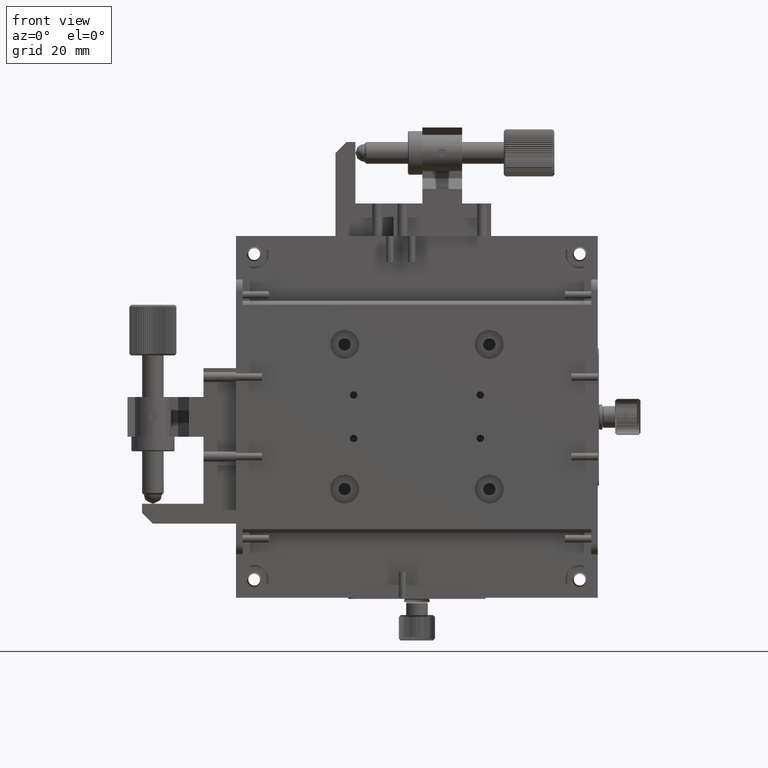
[diagram: clean part render]
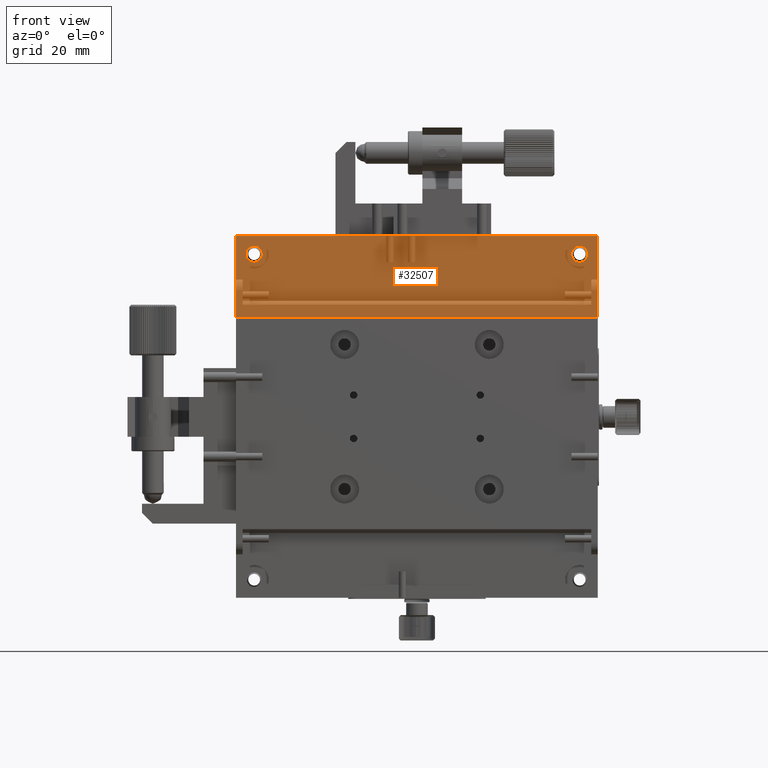
[diagram: same view with one face highlighted and labeled with its STEP entity id]
A machine part, front view. The second image highlights one B-rep face of the part: STEP entity #32507.
In plain terms, the highlighted planar face has unit normal (0, 1, 0).
Its self-contained STEP definition (entity closure, byte-faithful):
#390 = FACE_OUTER_BOUND ( 'NONE', #20846, .T. ) ;
#1474 = VECTOR ( 'NONE', #37595, 1000.000000000000000 ) ;
#2910 = LINE ( 'NONE', #36315, #6739 ) ;
#3729 = VERTEX_POINT ( 'NONE', #3929 ) ;
#3929 = CARTESIAN_POINT ( 'NONE',  ( 45.61567507671323085, -7.538186157517900554, 50.00000000000000711 ) ) ;
#4338 = DIRECTION ( 'NONE',  ( 0.000000000000000000, -0.000000000000000000, 1.000000000000000000 ) ) ;
#6159 = EDGE_CURVE ( 'NONE', #15373, #42281, #36886, .T. ) ;
#6739 = VECTOR ( 'NONE', #28218, 1000.000000000000000 ) ;
#7668 = DIRECTION ( 'NONE',  ( 0.000000000000000000, 0.000000000000000000, -1.000000000000000000 ) ) ;
#8024 = FACE_BOUND ( 'NONE', #29202, .T. ) ;
#9445 = ORIENTED_EDGE ( 'NONE', *, *, #40826, .F. ) ;
#9775 = EDGE_CURVE ( 'NONE', #15373, #3729, #41051, .T. ) ;
#12001 = VERTEX_POINT ( 'NONE', #23041 ) ;
#12205 = CARTESIAN_POINT ( 'NONE',  ( -54.38432492328677625, -7.538186157517900554, 50.00000000000000000 ) ) ;
#14336 = CARTESIAN_POINT ( 'NONE',  ( -54.38432492328678336, -7.538186157517901442, 27.40000000000000924 ) ) ;
#14999 = CARTESIAN_POINT ( 'NONE',  ( 45.61567507671323085, -7.538186157517900554, 50.00000000000000000 ) ) ;
#15373 = VERTEX_POINT ( 'NONE', #21333 ) ;
#15952 = CIRCLE ( 'NONE', #36335, 2.250000000000001776 ) ;
#19073 = VERTEX_POINT ( 'NONE', #21285 ) ;
#19586 = CARTESIAN_POINT ( 'NONE',  ( -49.38432492328678336, -7.538186157517900554, 45.00000000000000000 ) ) ;
#20846 = EDGE_LOOP ( 'NONE', ( #21800, #31520, #33452, #9445 ) ) ;
#21285 = CARTESIAN_POINT ( 'NONE',  ( -54.38432492328677625, -7.538186157517900554, 50.00000000000000000 ) ) ;
#21333 = CARTESIAN_POINT ( 'NONE',  ( 45.61567507671323085, -7.538186157517900554, 27.40000000000000924 ) ) ;
#21800 = ORIENTED_EDGE ( 'NONE', *, *, #46167, .T. ) ;
#22951 = VECTOR ( 'NONE', #7668, 1000.000000000000000 ) ;
#22999 = PLANE ( 'NONE',  #43931 ) ;
#23041 = CARTESIAN_POINT ( 'NONE',  ( -49.38432492328678336, -7.538186157517900554, 42.74999999999999289 ) ) ;
#26063 = ORIENTED_EDGE ( 'NONE', *, *, #39131, .T. ) ;
#26922 = FACE_BOUND ( 'NONE', #28720, .T. ) ;
#27540 = DIRECTION ( 'NONE',  ( 0.000000000000000000, -1.000000000000000000, 0.000000000000000000 ) ) ;
#28200 = AXIS2_PLACEMENT_3D ( 'NONE', #42789, #27540, #38341 ) ;
#28218 = DIRECTION ( 'NONE',  ( 1.000000000000000000, 0.000000000000000000, -0.000000000000000000 ) ) ;
#28720 = EDGE_LOOP ( 'NONE', ( #29189 ) ) ;
#28734 = VECTOR ( 'NONE', #34330, 1000.000000000000000 ) ;
#29189 = ORIENTED_EDGE ( 'NONE', *, *, #42769, .T. ) ;
#29202 = EDGE_LOOP ( 'NONE', ( #26063 ) ) ;
#31520 = ORIENTED_EDGE ( 'NONE', *, *, #9775, .F. ) ;
#32507 = ADVANCED_FACE ( 'NONE', ( #390, #26922, #8024 ), #22999, .T. ) ;
#33452 = ORIENTED_EDGE ( 'NONE', *, *, #6159, .T. ) ;
#33684 = CIRCLE ( 'NONE', #28200, 2.250000000000001776 ) ;
#34330 = DIRECTION ( 'NONE',  ( -1.000000000000000000, -0.000000000000000000, 0.000000000000000000 ) ) ;
#34539 = DIRECTION ( 'NONE',  ( 0.000000000000000000, 1.000000000000000000, 0.000000000000000000 ) ) ;
#36315 = CARTESIAN_POINT ( 'NONE',  ( -4.384324923286775366, -7.538186157517900554, 50.00000000000000000 ) ) ;
#36335 = AXIS2_PLACEMENT_3D ( 'NONE', #19586, #38736, #41935 ) ;
#36886 = LINE ( 'NONE', #41704, #28734 ) ;
#37595 = DIRECTION ( 'NONE',  ( 0.000000000000000000, 0.000000000000000000, 1.000000000000000000 ) ) ;
#38341 = DIRECTION ( 'NONE',  ( 0.000000000000000000, 0.000000000000000000, -1.000000000000000000 ) ) ;
#38736 = DIRECTION ( 'NONE',  ( 0.000000000000000000, -1.000000000000000000, 0.000000000000000000 ) ) ;
#39131 = EDGE_CURVE ( 'NONE', #43503, #43503, #33684, .T. ) ;
#40766 = CARTESIAN_POINT ( 'NONE',  ( 40.61567507671322375, -7.538186157517900554, 42.74999999999999289 ) ) ;
#40826 = EDGE_CURVE ( 'NONE', #19073, #42281, #41095, .T. ) ;
#41051 = LINE ( 'NONE', #14999, #1474 ) ;
#41095 = LINE ( 'NONE', #42054, #22951 ) ;
#41704 = CARTESIAN_POINT ( 'NONE',  ( -54.38432492328677625, -7.538186157517900554, 27.40000000000000924 ) ) ;
#41935 = DIRECTION ( 'NONE',  ( 0.000000000000000000, 0.000000000000000000, -1.000000000000000000 ) ) ;
#42054 = CARTESIAN_POINT ( 'NONE',  ( -54.38432492328677625, -7.538186157517900554, 50.00000000000000000 ) ) ;
#42281 = VERTEX_POINT ( 'NONE', #14336 ) ;
#42769 = EDGE_CURVE ( 'NONE', #12001, #12001, #15952, .T. ) ;
#42789 = CARTESIAN_POINT ( 'NONE',  ( 40.61567507671322375, -7.538186157517900554, 45.00000000000000000 ) ) ;
#43503 = VERTEX_POINT ( 'NONE', #40766 ) ;
#43931 = AXIS2_PLACEMENT_3D ( 'NONE', #12205, #34539, #4338 ) ;
#46167 = EDGE_CURVE ( 'NONE', #19073, #3729, #2910, .T. ) ;